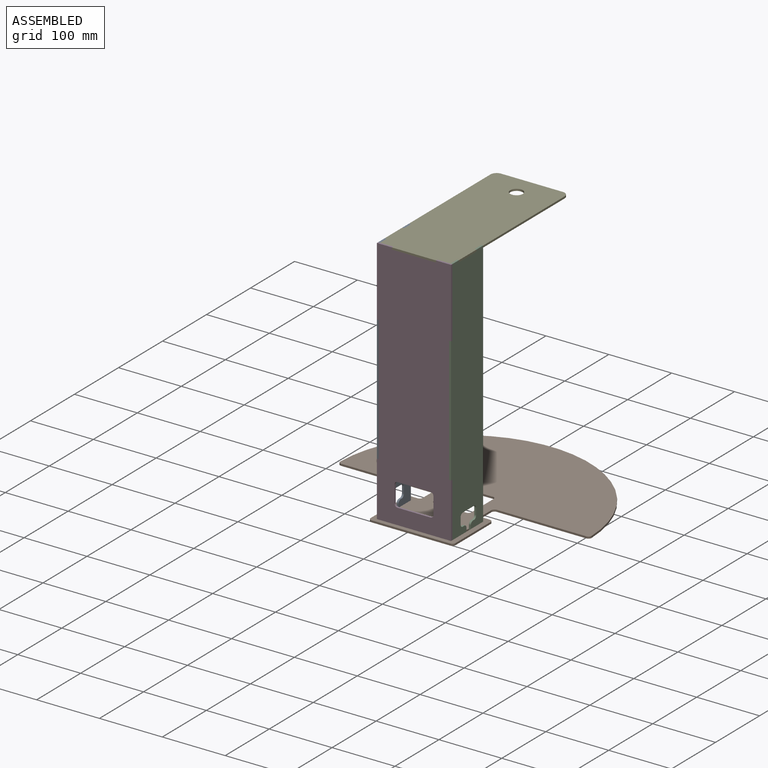
[diagram: assembled view]
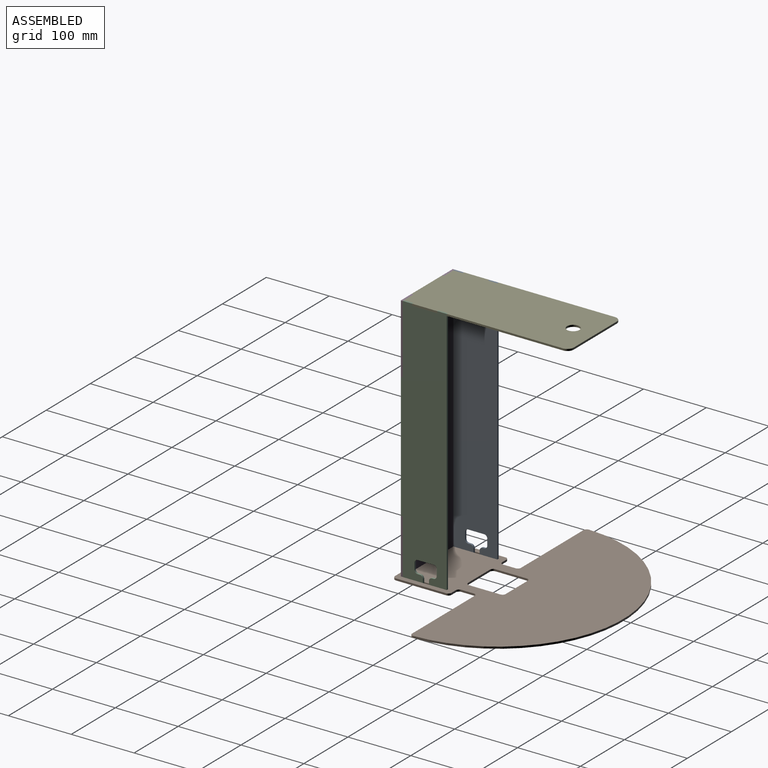
[diagram: assembled view, second angle]
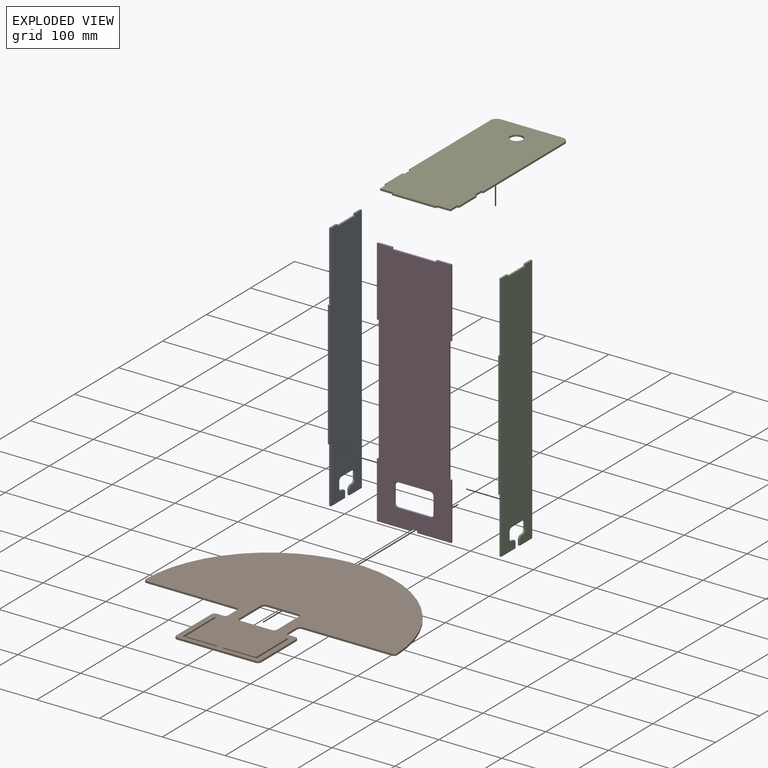
[diagram: exploded view]
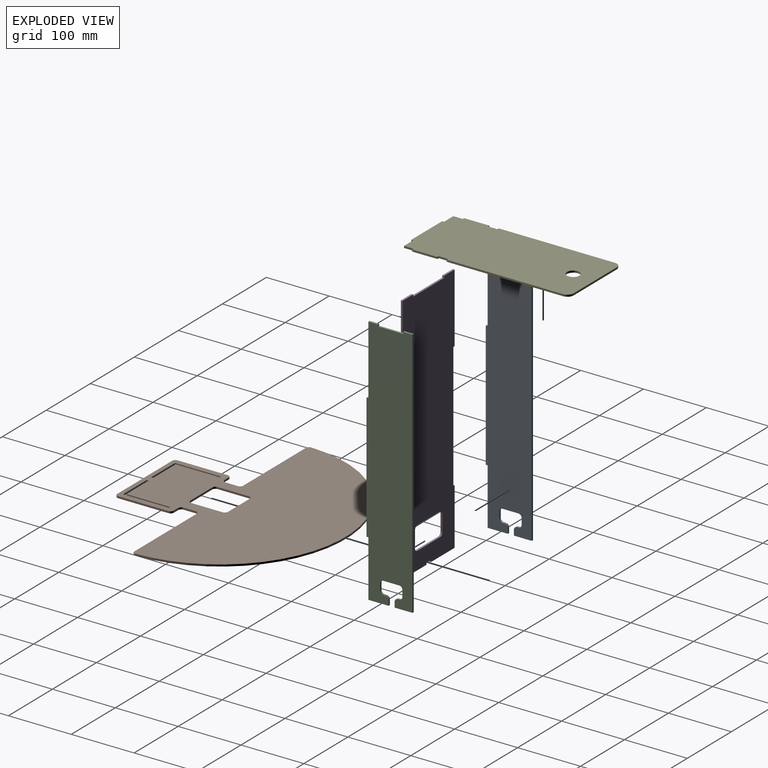
[diagram: exploded view, second angle]
ASSEMBLY  parts=5 mates=4
PART A: 28 faces, bbox 73x3x400 mm
  f0: plane 15x3mm, normal (0,0,1), area 45mm2, adj f6,f10,f11,f27
  f1: plane 32.08x3mm, normal (0,0,-1), area 96.2mm2, adj f2,f10,f11,f14
  f2: plane 90x3mm, normal (1,0,0), area 270mm2, adj f1,f3,f10,f11
  f3: plane 3x3mm, normal (0,0,-1), area 9mm2, adj f2,f4,f10,f11
  f4: plane 200x3mm, normal (1,0,0), area 600mm2, adj f3,f5,f10,f11
  f5: plane 3x3mm, normal (0,0,1), area 9mm2, adj f4,f6,f10,f11
  f6: plane 110x3mm, normal (1,0,0), area 330mm2, adj f0,f5,f10,f11
  f7: plane 15x3mm, normal (0,0,1), area 45mm2, adj f8,f10,f11,f25
  f8: plane 400x3mm, normal (-1,0,0), area 1200mm2, adj f7,f9,f10,f11
  f9: plane 28.25x3mm, normal (0,0,-1), area 84.8mm2, adj f8,f10,f11,f13
  f10: plane 400x73mm, normal (0,-1,0), area 27644.2mm2, adj f0,f1,f2,f3,f4,f5,f6,f7
  f11: plane 400x73mm, normal (0,1,0), area 27644.2mm2, adj f0,f1,f2,f3,f4,f5,f6,f7
  f12: plane 3x2.24mm, normal (0,0,1), area 6.7mm2, adj f10,f11,f19,f23
  f13: plane 8.44x3mm, normal (1,0,0), area 25.3mm2, adj f9,f10,f11,f19
  f14: plane 8.44x3mm, normal (-1,0,0), area 25.3mm2, adj f1,f10,f11,f24
  f15: plane 3.39x3mm, normal (0,0,1), area 10.2mm2, adj f10,f11,f20,f24
  f16: plane 10.31x3mm, normal (-1,0,0), area 30.9mm2, adj f10,f11,f20,f21
  f17: plane 25.29x3mm, normal (0,0,-1), area 75.9mm2, adj f10,f11,f21,f22
  f18: plane 10.31x3mm, normal (1,0,0), area 30.9mm2, adj f10,f11,f22,f23
  f19: cylinder r=5mm len=5mm, axis (0,-1,0), area 23.6mm2, adj f10,f11,f12,f13
  f20: cylinder r=5mm len=5mm, axis (0,-1,0), area 23.6mm2, adj f10,f11,f15,f16
  f21: cylinder r=5mm len=5mm, axis (0,1,0), area 23.6mm2, adj f10,f11,f16,f17
  f22: cylinder r=5mm len=5mm, axis (0,-1,0), area 23.6mm2, adj f10,f11,f17,f18
  f23: cylinder r=5mm len=5mm, axis (0,1,0), area 23.6mm2, adj f10,f11,f12,f18
  f24: cylinder r=5mm len=5mm, axis (0,-1,0), area 23.6mm2, adj f10,f11,f14,f15
  f25: plane 3x3mm, normal (1,0,0), area 9mm2, adj f7,f10,f11,f26
  f26: plane 40x3mm, normal (0,0,1), area 120mm2, adj f10,f11,f25,f27
  f27: plane 3x3mm, normal (-1,0,0), area 9mm2, adj f0,f10,f11,f26
PART B: 42 faces, bbox 399.9x320x3 mm
  f0: plane 54x3mm, normal (0,1,0), area 162mm2, adj f1,f33,f34,f35
  f1: plane 3x3mm, normal (1,0,0), area 9mm2, adj f0,f2,f34,f35
  f2: plane 51x3mm, normal (0,-1,0), area 153mm2, adj f1,f3,f34,f35
  f3: plane 70x3mm, normal (1,0,0), area 210mm2, adj f2,f4,f34,f35
  f4: plane 3x3mm, normal (0,-1,0), area 9mm2, adj f3,f33,f34,f35
  f5: plane 3x3mm, normal (-1,0,0), area 9mm2, adj f6,f30,f34,f35
  f6: plane 54x3mm, normal (0,1,0), area 162mm2, adj f5,f7,f34,f35
  f7: plane 73x3mm, normal (1,0,0), area 219mm2, adj f6,f8,f34,f35
  f8: plane 3x3mm, normal (0,-1,0), area 9mm2, adj f7,f9,f34,f35
  f9: plane 70x3mm, normal (-1,0,0), area 210mm2, adj f8,f30,f34,f35
  f10: cylinder r=5mm len=5mm, axis (0,0,-1), area 23.6mm2, adj f11,f31,f34,f35
  f11: plane 50x3mm, normal (0,-1,0), area 150mm2, adj f10,f12,f34,f35
  f12: cylinder r=5mm len=5mm, axis (0,0,-1), area 23.6mm2, adj f11,f13,f34,f35
  f13: plane 50x3mm, normal (-1,0,0), area 150mm2, adj f12,f14,f34,f35
  f14: cylinder r=5mm len=5mm, axis (0,0,-1), area 23.6mm2, adj f13,f15,f34,f35
  f15: plane 50x3mm, normal (0,1,0), area 150mm2, adj f14,f16,f34,f35
  f16: cylinder r=5mm len=5mm, axis (0,0,-1), area 23.6mm2, adj f15,f31,f34,f35
  f17: plane 20x3mm, normal (-1,0,0), area 60mm2, adj f32,f34,f35,f36
  f18: plane 10x3mm, normal (0,1,0), area 30mm2, adj f34,f35,f36,f38
  f19: plane 80x3mm, normal (-1,0,0), area 240mm2, adj f34,f35,f38,f39
  f20: plane 125x3mm, normal (0,-1,0), area 375mm2, adj f34,f35,f39,f40
  f21: plane 80x3mm, normal (1,0,0), area 240mm2, adj f34,f35,f40,f41
  f22: plane 10x3mm, normal (0,1,0), area 30mm2, adj f34,f35,f37,f41
  f23: plane 20x3mm, normal (1,0,0), area 60mm2, adj f24,f34,f35,f37
  f24: cylinder r=5mm len=5mm, axis (0,0,-1), area 23.6mm2, adj f23,f25,f34,f35
  f25: plane 142.44x3mm, normal (0,-1,0), area 427.3mm2, adj f24,f26,f34,f35
  f26: cylinder r=5mm len=5.13mm, axis (0,0,-1), area 23.9mm2, adj f25,f27,f34,f35
  f27: cylinder r=200mm len=399.87mm, axis (0,0,-1), area 1854.2mm2, adj f26,f28,f34,f35
  f28: cylinder r=5mm len=5.13mm, axis (0,0,-1), area 23.9mm2, adj f27,f29,f34,f35
  f29: plane 142.44x3mm, normal (0,-1,0), area 427.3mm2, adj f28,f32,f34,f35
  f30: plane 51x3mm, normal (0,-1,0), area 153mm2, adj f5,f9,f34,f35
  f31: plane 50x3mm, normal (1,0,0), area 150mm2, adj f10,f16,f34,f35
  f32: cylinder r=5mm len=5mm, axis (0,0,-1), area 23.6mm2, adj f17,f29,f34,f35
  f33: plane 73x3mm, normal (-1,0,0), area 219mm2, adj f0,f4,f34,f35
  f34: plane 399.87x320mm, normal (0,0,1), area 73498.2mm2, adj f0,f1,f2,f3,f4,f5,f6,f7
  f35: plane 399.87x320mm, normal (0,0,-1), area 73498.2mm2, adj f0,f1,f2,f3,f4,f5,f6,f7
  f36: cylinder r=5mm len=5mm, axis (0,0,1), area 23.6mm2, adj f17,f18,f34,f35
  f37: cylinder r=5mm len=5mm, axis (0,0,1), area 23.6mm2, adj f22,f23,f34,f35
  f38: cylinder r=5mm len=5mm, axis (0,0,-1), area 23.6mm2, adj f18,f19,f34,f35
  f39: cylinder r=5mm len=5mm, axis (0,0,1), area 23.6mm2, adj f19,f20,f34,f35
  f40: cylinder r=5mm len=5mm, axis (0,0,-1), area 23.6mm2, adj f20,f21,f34,f35
  f41: cylinder r=5mm len=5mm, axis (0,0,-1), area 23.6mm2, adj f21,f22,f34,f35
PART C: same geometry as A
PART D: 30 faces, bbox 118x3x400 mm
  f0: plane 24x3mm, normal (0,0,1), area 72mm2, adj f1,f2,f3,f29
  f1: plane 400x118mm, normal (0,-1,0), area 43487.5mm2, adj f0,f3,f4,f5,f6,f7,f8,f9
  f2: plane 400x118mm, normal (0,1,0), area 43487.5mm2, adj f0,f3,f4,f5,f6,f7,f8,f9
  f3: plane 110x3mm, normal (1,0,0), area 330mm2, adj f0,f1,f2,f14
  f4: plane 110x3mm, normal (-1,0,0), area 330mm2, adj f1,f2,f8,f18
  f5: plane 3x3mm, normal (-1,0,0), area 9mm2, adj f1,f2,f6,f12
  f6: plane 54x3mm, normal (0,0,-1), area 162mm2, adj f1,f2,f5,f7
  f7: plane 90x3mm, normal (1,0,0), area 270mm2, adj f1,f2,f6,f13
  f8: plane 24x3mm, normal (0,0,1), area 72mm2, adj f1,f2,f4,f27
  f9: plane 90x3mm, normal (-1,0,0), area 270mm2, adj f1,f2,f10,f16
  f10: plane 54x3mm, normal (0,0,-1), area 162mm2, adj f1,f2,f9,f11
  f11: plane 3x3mm, normal (1,0,0), area 9mm2, adj f1,f2,f10,f12
  f12: plane 10x3mm, normal (0,0,-1), area 30mm2, adj f1,f2,f5,f11
  f13: plane 3x3mm, normal (0,0,1), area 9mm2, adj f1,f2,f7,f15
  f14: plane 3x3mm, normal (0,0,-1), area 9mm2, adj f1,f2,f3,f15
  f15: plane 200x3mm, normal (1,0,0), area 600mm2, adj f1,f2,f13,f14
  f16: plane 3x3mm, normal (0,0,1), area 9mm2, adj f1,f2,f9,f17
  f17: plane 200x3mm, normal (-1,0,0), area 600mm2, adj f1,f2,f16,f18
  f18: plane 3x3mm, normal (0,0,-1), area 9mm2, adj f1,f2,f4,f17
  f19: plane 27x3mm, normal (-1,0,0), area 81mm2, adj f1,f2,f23,f26
  f20: plane 52x3mm, normal (0,0,-1), area 156mm2, adj f1,f2,f23,f24
  f21: plane 27x3mm, normal (1,0,0), area 81mm2, adj f1,f2,f24,f25
  f22: plane 52x3mm, normal (0,0,1), area 156mm2, adj f1,f2,f25,f26
  f23: cylinder r=5mm len=5mm, axis (0,1,0), area 23.6mm2, adj f1,f2,f19,f20
  f24: cylinder r=5mm len=5mm, axis (0,-1,0), area 23.6mm2, adj f1,f2,f20,f21
  f25: cylinder r=5mm len=5mm, axis (0,1,0), area 23.6mm2, adj f1,f2,f21,f22
  f26: cylinder r=5mm len=5mm, axis (0,-1,0), area 23.6mm2, adj f1,f2,f19,f22
  f27: plane 3x3mm, normal (1,0,0), area 9mm2, adj f1,f2,f8,f28
  f28: plane 70x3mm, normal (0,0,1), area 210mm2, adj f1,f2,f27,f29
  f29: plane 3x3mm, normal (-1,0,0), area 9mm2, adj f0,f1,f2,f28
PART E: 25 faces, bbox 118x268x3 mm
  f0: plane 185x3mm, normal (-1,0,0), area 555mm2, adj f1,f20,f21,f24
  f1: plane 3x3mm, normal (0,-1,0), area 9mm2, adj f0,f2,f20,f21
  f2: plane 15x3mm, normal (-1,0,0), area 45mm2, adj f1,f3,f20,f21
  f3: plane 3x3mm, normal (0,1,0), area 9mm2, adj f2,f4,f20,f21
  f4: plane 40x3mm, normal (-1,0,0), area 120mm2, adj f3,f5,f20,f21
  f5: plane 3x3mm, normal (0,-1,0), area 9mm2, adj f4,f6,f20,f21
  f6: plane 15x3mm, normal (-1,0,0), area 45mm2, adj f5,f7,f20,f21
  f7: plane 21x3mm, normal (0,-1,0), area 63mm2, adj f6,f8,f20,f21
  f8: plane 3x3mm, normal (-1,0,0), area 9mm2, adj f7,f9,f20,f21
  f9: plane 70x3mm, normal (0,-1,0), area 210mm2, adj f8,f10,f20,f21
  f10: plane 3x3mm, normal (1,0,0), area 9mm2, adj f9,f11,f20,f21
  f11: plane 21x3mm, normal (0,-1,0), area 63mm2, adj f10,f12,f20,f21
  f12: plane 15x3mm, normal (1,0,0), area 45mm2, adj f11,f13,f20,f21
  f13: plane 3x3mm, normal (0,-1,0), area 9mm2, adj f12,f14,f20,f21
  f14: plane 40x3mm, normal (1,0,0), area 120mm2, adj f13,f15,f20,f21
  f15: plane 3x3mm, normal (0,1,0), area 9mm2, adj f14,f16,f20,f21
  f16: plane 15x3mm, normal (1,0,0), area 45mm2, adj f15,f17,f20,f21
  f17: plane 3x3mm, normal (0,-1,0), area 9mm2, adj f16,f18,f20,f21
  f18: plane 185x3mm, normal (1,0,0), area 555mm2, adj f17,f20,f21,f23
  f19: plane 98x3mm, normal (0,1,0), area 294mm2, adj f20,f21,f23,f24
  f20: plane 268x118mm, normal (0,0,1), area 30942.9mm2, adj f0,f1,f2,f3,f4,f5,f6,f7
  f21: plane 268x118mm, normal (0,0,-1), area 30942.9mm2, adj f0,f1,f2,f3,f4,f5,f6,f7
  f22: cylinder r=10mm len=20mm, axis (0,0,1), area 188.5mm2, adj f20,f21
  f23: cylinder r=10mm len=10mm, axis (0,0,1), area 47.1mm2, adj f18,f19,f20,f21
  f24: cylinder r=10mm len=10mm, axis (0,0,-1), area 47.1mm2, adj f0,f19,f20,f21
PLACE A rot(axis=(0,0,-1),90deg) t=(-37.65,-38.63,44.66)mm
PLACE B t=(18.35,1.37,44.66)mm
PLACE C rot(axis=(0,0,-1),90deg) t=(77.35,-38.63,44.66)mm
PLACE D rot(axis=(0,0,1),180deg) t=(77.35,-111.63,44.66)mm
PLACE E t=(-40.65,-111.63,441.66)mm
MATE fastened D.f2 <-> B.f0  axis (0,-1,0) through (77.35,-111.63,44.66)mm
MATE fastened C.f10 <-> B.f3  axis (-1,0,0) through (74.35,-38.63,44.66)mm
MATE fastened A.f10 <-> B.f7  axis (-1,0,0) through (-40.65,-38.63,44.66)mm
MATE fastened D.f2 <-> E.f9  axis (0,-1,0) through (53.35,-111.63,441.66)mm
